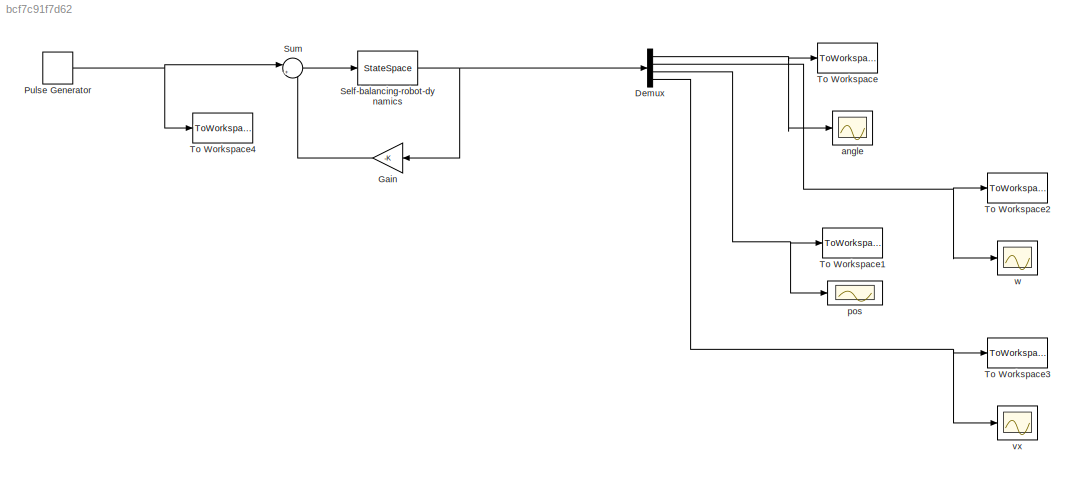
MODEL slx_bcf7c91f7d62
KIND model
CONFIG AbsTol = auto
CONFIG FixedStep = auto
CONFIG MaxStep = auto
CONFIG MinStep = auto
CONFIG RelTol = 1e-3
CONFIG SampleTimeConstraint = Unconstrained
CONFIG Solver = ode45
CONFIG SolverMode = Auto
CONFIG SolverName = ode45
CONFIG StartTime = 0.0
CONFIG StopTime = 20
BLOCK [Demux] Demux
  DisplayOption = bar
  Ports = [1, 4]
BLOCK [Gain] Gain
  Gain = -K
  Multiplication = Matrix(K*u)
  OutDataTypeStr = Inherit: Inherit via internal rule
  ParamDataTypeStr = Inherit: Inherit via internal rule
  SaturateOnIntegerOverflow = off
BLOCK [DiscretePulseGenerator] Pulse Generator
  Amplitude = 5
  Period = 10
  Ports = [0, 1]
  PulseType = Time based
  PulseWidth = 50
BLOCK [StateSpace] Self-balancing-robot-dynamics
  A = [0,1,0,0; 0,16.33,0,0; 0,0,0,1; 0,130.7,0,0]
  B = [0;4.444;0;22.22]
  C = [1 0 0 0; 0 1 0 0; 0 0 1 0; 0 0 0 1]
  ContinuousStateAttributes = 'x'
  D = [0;0;0;0]
  Ports = [1, 1]
  X0 = [0 0 0 0]
BLOCK [Sum] Sum
  IconShape = round
  InputSameDT = off
  Inputs = |++
  OutDataTypeStr = Inherit: Inherit via internal rule
  Ports = [2, 1]
  SaturateOnIntegerOverflow = off
BLOCK [ToWorkspace] To Workspace
  FixptAsFi = on
  MaxDataPoints = inf
  Ports = [1]
  SampleTime = -1
  Save2DSignal = 3-D array (concatenate along third dimension)
  SaveFormat = Timeseries
  VariableName = angle
BLOCK [ToWorkspace] To Workspace1
  FixptAsFi = on
  MaxDataPoints = inf
  Ports = [1]
  SampleTime = -1
  Save2DSignal = 3-D array (concatenate along third dimension)
  SaveFormat = Timeseries
  VariableName = pos
BLOCK [ToWorkspace] To Workspace2
  FixptAsFi = on
  MaxDataPoints = inf
  Ports = [1]
  SampleTime = -1
  Save2DSignal = 3-D array (concatenate along third dimension)
  SaveFormat = Timeseries
  VariableName = omega
BLOCK [ToWorkspace] To Workspace3
  FixptAsFi = on
  MaxDataPoints = inf
  Ports = [1]
  SampleTime = -1
  Save2DSignal = 3-D array (concatenate along third dimension)
  SaveFormat = Timeseries
  VariableName = vel
BLOCK [ToWorkspace] To Workspace4
  FixptAsFi = on
  MaxDataPoints = inf
  Ports = [1]
  SampleTime = -1
  Save2DSignal = 3-D array (concatenate along third dimension)
  SaveFormat = Timeseries
  VariableName = input
BLOCK [Scope] angle
  Floating = off
  LegendLocations = 0.8977      0.9061    0.074594     0.02999
  LimitDataPoints = off
  NumInputPorts = 1
  Ports = [1]
  ShowLegends = on
  TickLabels = on
  YMin = 0
BLOCK [Scope] pos
  Floating = off
  LimitDataPoints = off
  NumInputPorts = 1
  Ports = [1]
  SaveName = ScopeData3
  YMax = 4e+17
  YMin = -4e+17
  ZoomMode = xonly
BLOCK [Scope] vx
  Floating = off
  LimitDataPoints = off
  NumInputPorts = 1
  Ports = [1]
  SaveName = ScopeData2
  ShowLegends = on
  TickLabels = on
  YMin = 0
BLOCK [Scope] w
  Floating = off
  LegendLocations = 0.8977      0.9061    0.074594     0.02999
  LimitDataPoints = off
  NumInputPorts = 1
  Ports = [1]
  SaveName = ScopeData1
  ShowLegends = on
  TickLabels = on
  YMin = 0
NET Demux:1 -> To Workspace:1, angle:1
NET Demux:2 -> To Workspace2:1, w:1
NET Demux:3 -> To Workspace1:1, pos:1
NET Demux:4 -> To Workspace3:1, vx:1
LINE Gain:1 -> Sum:2
NET Pulse Generator:1 -> Sum:1, To Workspace4:1
NET Self-balancing-robot-dynamics:1 -> Demux:1, Gain:1
LINE Sum:1 -> Self-balancing-robot-dynamics:1
note: NET lines group one-source signal fan-out (src -> all destinations, sorted); 1:1 wires keep LINE
